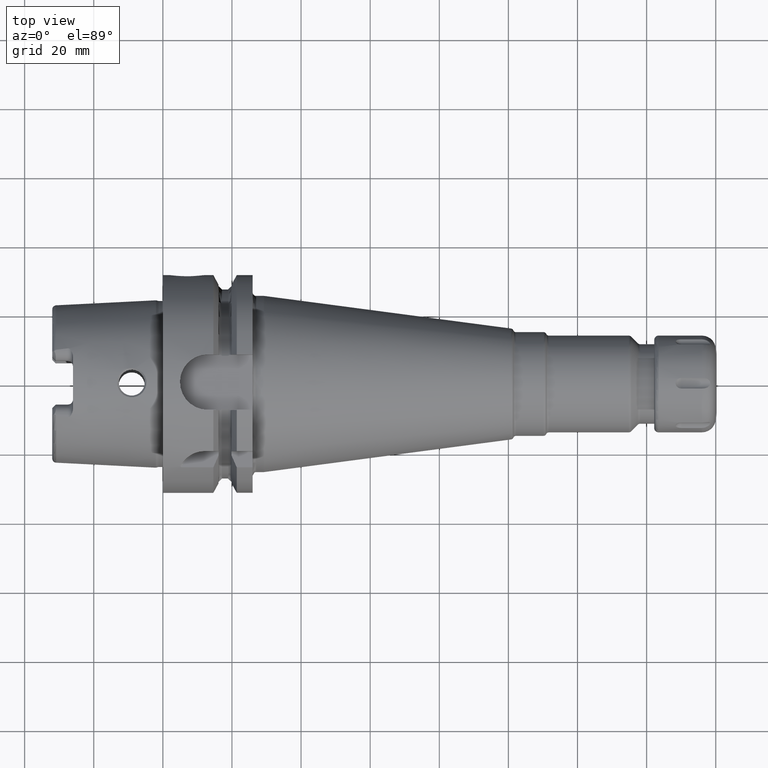
[diagram: clean part render]
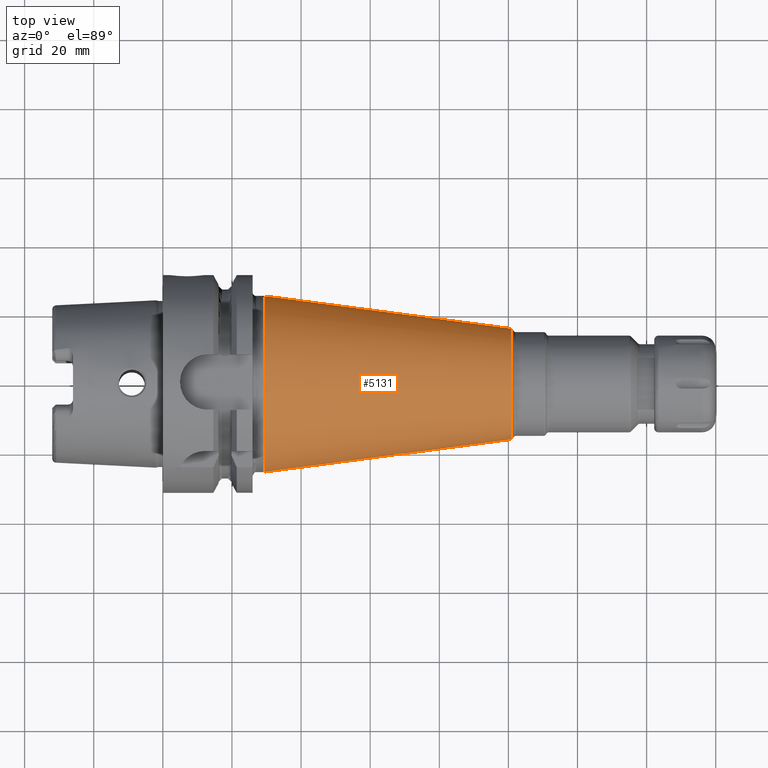
[diagram: same view with one face highlighted and labeled with its STEP entity id]
A machine part, top view. The second image highlights one B-rep face of the part: STEP entity #5131.
In plain terms, the highlighted conical surface has half-angle 7.524 deg.
Its self-contained STEP definition (entity closure, byte-faithful):
#1611=DIRECTION('',(-9.913891105597E-1,1.309489651114E-1,1.934592193522E-14));
#1612=VECTOR('',#1611,7.195576981167E1);
#1613=CARTESIAN_POINT('',(1.007717407338E2,1.605163374105E1,
-1.448553235313E-13));
#1614=LINE('',#1613,#1612);
#1620=DIRECTION('',(-9.913891105597E-1,-1.309489651114E-1,-1.952319666309E-14));
#1621=VECTOR('',#1620,7.195576981167E1);
#1622=CARTESIAN_POINT('',(1.007717407338E2,-1.605163374105E1,
1.443656187077E-13));
#1623=LINE('',#1622,#1621);
#1629=CARTESIAN_POINT('',(1.007717407338E2,0.E0,0.E0));
#1630=DIRECTION('',(-1.E0,0.E0,0.E0));
#1631=DIRECTION('',(0.E0,-1.E0,0.E0));
#1632=AXIS2_PLACEMENT_3D('',#1629,#1630,#1631);
#1634=CARTESIAN_POINT('',(2.943557410055E1,0.E0,0.E0));
#1635=DIRECTION('',(-1.E0,0.E0,0.E0));
#1636=DIRECTION('',(0.E0,-1.E0,0.E0));
#1637=AXIS2_PLACEMENT_3D('',#1634,#1635,#1636);
#3365=CARTESIAN_POINT('',(1.007717407338E2,1.605163374105E1,
-1.448553235313E-13));
#3366=CARTESIAN_POINT('',(2.943557410055E1,2.547416733168E1,
1.247195382034E-12));
#3367=VERTEX_POINT('',#3365);
#3368=VERTEX_POINT('',#3366);
#3369=CARTESIAN_POINT('',(1.007717407338E2,-1.605163374105E1,
1.443656187077E-13));
#3370=CARTESIAN_POINT('',(2.943557410055E1,-2.547416733168E1,
-1.260441026370E-12));
#3371=VERTEX_POINT('',#3369);
#3372=VERTEX_POINT('',#3370);
#5119=CARTESIAN_POINT('',(6.510365741717E1,0.E0,0.E0));
#5120=DIRECTION('',(-1.E0,0.E0,0.E0));
#5121=DIRECTION('',(0.E0,1.E0,0.E0));
#5122=AXIS2_PLACEMENT_3D('',#5119,#5120,#5121);
#5123=CONICAL_SURFACE('',#5122,2.076290053636E1,7.524432809141E0);
#5124=ORIENTED_EDGE('',*,*,#5109,.F.);
#5126=ORIENTED_EDGE('',*,*,#5125,.F.);
#5127=ORIENTED_EDGE('',*,*,#5112,.T.);
#5128=ORIENTED_EDGE('',*,*,#5071,.T.);
#5129=EDGE_LOOP('',(#5124,#5126,#5127,#5128));
#5130=FACE_OUTER_BOUND('',#5129,.F.);
#5131=ADVANCED_FACE('',(#5130),#5123,.T.);
#1633=CIRCLE('',#1632,1.605163374105E1);
#1638=CIRCLE('',#1637,2.547416733168E1);
#5071=EDGE_CURVE('',#3372,#3368,#1638,.T.);
#5109=EDGE_CURVE('',#3367,#3368,#1614,.T.);
#5112=EDGE_CURVE('',#3371,#3372,#1623,.T.);
#5125=EDGE_CURVE('',#3371,#3367,#1633,.T.);